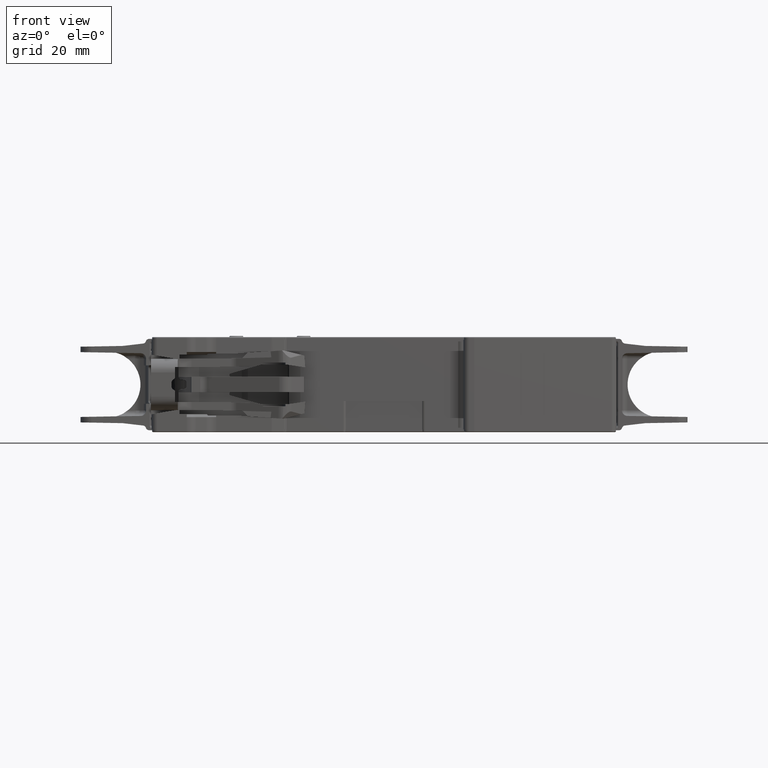
[diagram: clean part render]
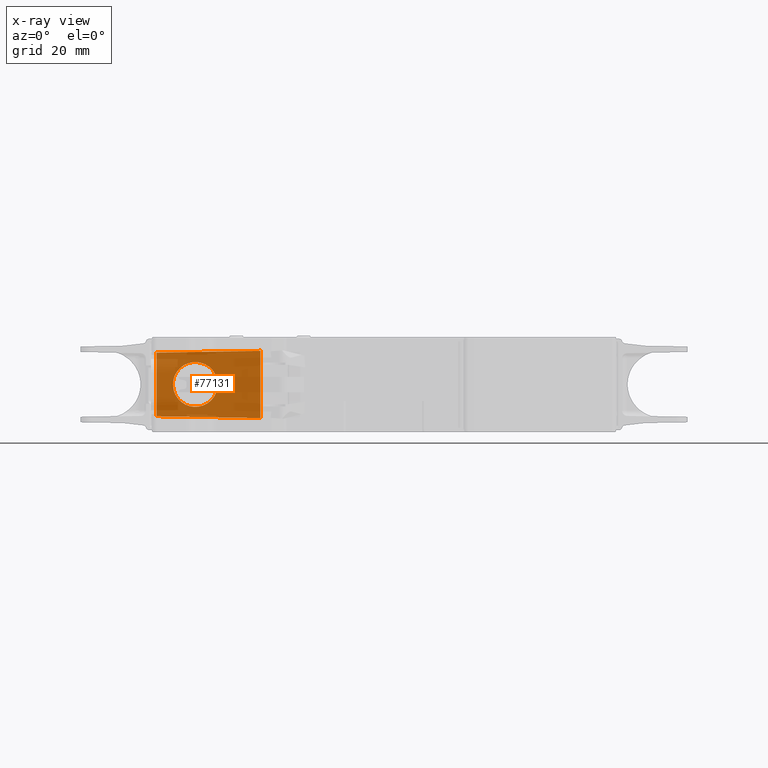
[diagram: x-ray — body ghosted, one internal face saturated and labeled with its STEP entity id]
A machine part, front view, then the same camera in x-ray: the body is ghosted and one INTERNAL B-rep face — a face not visible from any outside direction — is saturated and labeled: STEP entity #77131.
In plain terms, the highlighted planar face has unit normal (-0.0698, 0.9976, 0).
Its self-contained STEP definition (entity closure, byte-faithful):
#6565=DIRECTION('',(0.E0,0.E0,-1.E0));
#6566=VECTOR('',#6565,1.229577685988E1);
#6567=CARTESIAN_POINT('',(-2.26E1,-8.021113419311E0,6.147888429939E0));
#6568=LINE('',#6567,#6566);
#18424=DIRECTION('',(9.974128314399E-1,6.974624611232E-2,-1.740990615397E-2));
#18425=VECTOR('',#18424,1.901896126957E1);
#18426=CARTESIAN_POINT('',(-4.156975601092E1,-9.347614572819E0,
-5.816770099090E0));
#18427=LINE('',#18426,#18425);
#18428=DIRECTION('',(-1.755123360180E-10,-1.176329408071E-11,1.E0));
#18429=VECTOR('',#18428,1.163354019814E1);
#18430=CARTESIAN_POINT('',(-4.156975601092E1,-9.347614572819E0,
-5.816770099090E0));
#18431=LINE('',#18430,#18429);
#18432=DIRECTION('',(-9.974128314399E-1,-6.974624611200E-2,-1.740990615400E-2));
#18433=VECTOR('',#18432,1.901896127161E1);
#18434=CARTESIAN_POINT('',(-2.26E1,-8.021113419311E0,6.147888429939E0));
#18435=LINE('',#18434,#18433);
#18436=CARTESIAN_POINT('',(-3.04E1,-8.566542552471E0,0.E0));
#18437=CARTESIAN_POINT('',(-3.04E1,-8.566542552471E0,1.207974084527E-1));
#18438=CARTESIAN_POINT('',(-3.041068865333E1,-8.567289975922E0,
3.668393172799E-1));
#18439=CARTESIAN_POINT('',(-3.046209896146E1,-8.570884934871E0,
7.452854491249E-1));
#18440=CARTESIAN_POINT('',(-3.055160343777E1,-8.577143697553E0,
1.128309975559E0));
#18441=CARTESIAN_POINT('',(-3.068107291606E1,-8.586197085414E0,
1.510366733834E0));
#18442=CARTESIAN_POINT('',(-3.085131269187E1,-8.598101410203E0,
1.885352944327E0));
#18443=CARTESIAN_POINT('',(-3.106188974844E1,-8.612826392437E0,
2.246868478034E0));
#18444=CARTESIAN_POINT('',(-3.131103873838E1,-8.630248587002E0,
2.588533076811E0));
#18445=CARTESIAN_POINT('',(-3.159566688370E1,-8.650151725794E0,
2.904333124142E0));
#18446=CARTESIAN_POINT('',(-3.191146690964E1,-8.672234614820E0,
3.188961243809E0));
#18447=CARTESIAN_POINT('',(-3.225313156831E1,-8.696126135155E0,
3.438110314963E0));
#18448=CARTESIAN_POINT('',(-3.261464688383E1,-8.721405748637E0,
3.648687072316E0));
#18449=CARTESIAN_POINT('',(-3.298963390720E1,-8.747627395702E0,
3.818927963783E0));
#18450=CARTESIAN_POINT('',(-3.330801201133E1,-8.769890561517E0,
3.926815726202E0));
#18451=CARTESIAN_POINT('',(-3.356320555556E1,-8.787735432493E0,
3.993153285780E0));
#18452=CARTESIAN_POINT('',(-3.375414038517E1,-8.801086896416E0,
4.033137186436E0));
#18453=CARTESIAN_POINT('',(-3.394394181442E1,-8.814359105266E0,
4.063610031525E0));
#18454=CARTESIAN_POINT('',(-3.410064506859E1,-8.825316864252E0,
4.081341307174E0));
#18455=CARTESIAN_POINT('',(-3.422484092751E1,-8.834001484722E0,
4.091109016721E0));
#18456=CARTESIAN_POINT('',(-3.431734156767E1,-8.840469759592E0,
4.096275298448E0));
#18457=CARTESIAN_POINT('',(-3.439382259107E1,-8.845817833732E0,
4.098823078446E0));
#18458=CARTESIAN_POINT('',(-3.445464091427E1,-8.850070665181E0,
4.099833167338E0));
#18459=CARTESIAN_POINT('',(-3.45E1,-8.853242481439E0,4.100083416331E0));
#18460=CARTESIAN_POINT('',(-3.454535908573E1,-8.856414297697E0,
4.099833167338E0));
#18461=CARTESIAN_POINT('',(-3.460617740893E1,-8.860667129146E0,
4.098823078446E0));
#18462=CARTESIAN_POINT('',(-3.468265843233E1,-8.866015203286E0,
4.096275298448E0));
#18463=CARTESIAN_POINT('',(-3.477515907249E1,-8.872483478156E0,
4.091109016721E0));
#18464=CARTESIAN_POINT('',(-3.489935493141E1,-8.881168098626E0,
4.081341307174E0));
#18465=CARTESIAN_POINT('',(-3.505605818558E1,-8.892125857611E0,
4.063610031525E0));
#18466=CARTESIAN_POINT('',(-3.524585961483E1,-8.905398066461E0,
4.033137186436E0));
#18467=CARTESIAN_POINT('',(-3.543679444444E1,-8.918749530385E0,
3.993153285780E0));
#18468=CARTESIAN_POINT('',(-3.569198798867E1,-8.936594401361E0,
3.926815726202E0));
#18469=CARTESIAN_POINT('',(-3.601036609280E1,-8.958857567176E0,
3.818927963783E0));
#18470=CARTESIAN_POINT('',(-3.638535311617E1,-8.985079214241E0,
3.648687072316E0));
#18471=CARTESIAN_POINT('',(-3.674686843169E1,-9.010358827723E0,
3.438110314963E0));
#18472=CARTESIAN_POINT('',(-3.708853309036E1,-9.034250348058E0,
3.188961243809E0));
#18473=CARTESIAN_POINT('',(-3.740433311630E1,-9.056333237084E0,
2.904333124142E0));
#18474=CARTESIAN_POINT('',(-3.768896126162E1,-9.076236375875E0,
2.588533076811E0));
#18475=CARTESIAN_POINT('',(-3.793811025156E1,-9.093658570441E0,
2.246868478034E0));
#18476=CARTESIAN_POINT('',(-3.814868730813E1,-9.108383552675E0,
1.885352944327E0));
#18477=CARTESIAN_POINT('',(-3.831892708394E1,-9.120287877464E0,
1.510366733834E0));
#18478=CARTESIAN_POINT('',(-3.844839656223E1,-9.129341265324E0,
1.128309975559E0));
#18479=CARTESIAN_POINT('',(-3.853790103854E1,-9.135600028007E0,
7.452854491249E-1));
#18480=CARTESIAN_POINT('',(-3.858931134667E1,-9.139194986956E0,
3.668393172799E-1));
#18481=CARTESIAN_POINT('',(-3.86E1,-9.139942410407E0,1.207974084527E-1));
#18482=CARTESIAN_POINT('',(-3.86E1,-9.139942410407E0,0.E0));
#18484=CARTESIAN_POINT('',(-3.86E1,-9.139942410407E0,0.E0));
#18485=CARTESIAN_POINT('',(-3.86E1,-9.139942410407E0,-1.207974084527E-1));
#18486=CARTESIAN_POINT('',(-3.858931134667E1,-9.139194986956E0,
-3.668393172799E-1));
#18487=CARTESIAN_POINT('',(-3.853790103854E1,-9.135600028007E0,
-7.452854491249E-1));
#18488=CARTESIAN_POINT('',(-3.844839656223E1,-9.129341265324E0,
-1.128309975559E0));
#18489=CARTESIAN_POINT('',(-3.831892708394E1,-9.120287877464E0,
-1.510366733834E0));
#18490=CARTESIAN_POINT('',(-3.814868730813E1,-9.108383552675E0,
-1.885352944327E0));
#18491=CARTESIAN_POINT('',(-3.793811025156E1,-9.093658570441E0,
-2.246868478034E0));
#18492=CARTESIAN_POINT('',(-3.768896126162E1,-9.076236375875E0,
-2.588533076811E0));
#18493=CARTESIAN_POINT('',(-3.740433311630E1,-9.056333237084E0,
-2.904333124142E0));
#18494=CARTESIAN_POINT('',(-3.708853309036E1,-9.034250348058E0,
-3.188961243809E0));
#18495=CARTESIAN_POINT('',(-3.674686843169E1,-9.010358827723E0,
-3.438110314963E0));
#18496=CARTESIAN_POINT('',(-3.638535311617E1,-8.985079214241E0,
-3.648687072316E0));
#18497=CARTESIAN_POINT('',(-3.601036609280E1,-8.958857567176E0,
-3.818927963783E0));
#18498=CARTESIAN_POINT('',(-3.569198798867E1,-8.936594401361E0,
-3.926815726202E0));
#18499=CARTESIAN_POINT('',(-3.543679444444E1,-8.918749530385E0,
-3.993153285780E0));
#18500=CARTESIAN_POINT('',(-3.524585961483E1,-8.905398066461E0,
-4.033137186436E0));
#18501=CARTESIAN_POINT('',(-3.505605818558E1,-8.892125857611E0,
-4.063610031525E0));
#18502=CARTESIAN_POINT('',(-3.489935493141E1,-8.881168098626E0,
-4.081341307174E0));
#18503=CARTESIAN_POINT('',(-3.477515907249E1,-8.872483478156E0,
-4.091109016721E0));
#18504=CARTESIAN_POINT('',(-3.468265843233E1,-8.866015203286E0,
-4.096275298448E0));
#18505=CARTESIAN_POINT('',(-3.460617740893E1,-8.860667129146E0,
-4.098823078446E0));
#18506=CARTESIAN_POINT('',(-3.454535908573E1,-8.856414297697E0,
-4.099833167338E0));
#18507=CARTESIAN_POINT('',(-3.45E1,-8.853242481439E0,-4.100083416331E0));
#18508=CARTESIAN_POINT('',(-3.445464091427E1,-8.850070665181E0,
-4.099833167338E0));
#18509=CARTESIAN_POINT('',(-3.439382259107E1,-8.845817833732E0,
-4.098823078446E0));
#18510=CARTESIAN_POINT('',(-3.431734156767E1,-8.840469759592E0,
-4.096275298448E0));
#18511=CARTESIAN_POINT('',(-3.422484092751E1,-8.834001484722E0,
-4.091109016721E0));
#18512=CARTESIAN_POINT('',(-3.410064506859E1,-8.825316864252E0,
-4.081341307174E0));
#18513=CARTESIAN_POINT('',(-3.394394181442E1,-8.814359105266E0,
-4.063610031525E0));
#18514=CARTESIAN_POINT('',(-3.375414038517E1,-8.801086896416E0,
-4.033137186436E0));
#18515=CARTESIAN_POINT('',(-3.356320555556E1,-8.787735432493E0,
-3.993153285780E0));
#18516=CARTESIAN_POINT('',(-3.330801201133E1,-8.769890561517E0,
-3.926815726202E0));
#18517=CARTESIAN_POINT('',(-3.298963390720E1,-8.747627395702E0,
-3.818927963783E0));
#18518=CARTESIAN_POINT('',(-3.261464688383E1,-8.721405748637E0,
-3.648687072316E0));
#18519=CARTESIAN_POINT('',(-3.225313156831E1,-8.696126135155E0,
-3.438110314963E0));
#18520=CARTESIAN_POINT('',(-3.191146690964E1,-8.672234614820E0,
-3.188961243809E0));
#18521=CARTESIAN_POINT('',(-3.159566688370E1,-8.650151725794E0,
-2.904333124142E0));
#18522=CARTESIAN_POINT('',(-3.131103873838E1,-8.630248587002E0,
-2.588533076811E0));
#18523=CARTESIAN_POINT('',(-3.106188974844E1,-8.612826392437E0,
-2.246868478034E0));
#18524=CARTESIAN_POINT('',(-3.085131269187E1,-8.598101410203E0,
-1.885352944327E0));
#18525=CARTESIAN_POINT('',(-3.068107291606E1,-8.586197085414E0,
-1.510366733834E0));
#18526=CARTESIAN_POINT('',(-3.055160343777E1,-8.577143697553E0,
-1.128309975559E0));
#18527=CARTESIAN_POINT('',(-3.046209896146E1,-8.570884934871E0,
-7.452854491249E-1));
#18528=CARTESIAN_POINT('',(-3.041068865333E1,-8.567289975922E0,
-3.668393172799E-1));
#18529=CARTESIAN_POINT('',(-3.04E1,-8.566542552471E0,-1.207974084527E-1));
#18530=CARTESIAN_POINT('',(-3.04E1,-8.566542552471E0,0.E0));
#18938=CARTESIAN_POINT('',(-4.156975601297E1,-9.347614572956E0,
5.816770099053E0));
#45588=CARTESIAN_POINT('',(-3.86E1,-9.139942410407E0,0.E0));
#45589=VERTEX_POINT('',#45588);
#45590=CARTESIAN_POINT('',(-3.04E1,-8.566542552471E0,0.E0));
#45591=VERTEX_POINT('',#45590);
#46373=CARTESIAN_POINT('',(-4.156975601092E1,-9.347614572819E0,
-5.816770099090E0));
#46374=CARTESIAN_POINT('',(-2.26E1,-8.021113419311E0,-6.147888429939E0));
#46375=VERTEX_POINT('',#46373);
#46376=VERTEX_POINT('',#46374);
#46392=VERTEX_POINT('',#18938);
#46393=CARTESIAN_POINT('',(-2.26E1,-8.021113419311E0,6.147888429939E0));
#46394=VERTEX_POINT('',#46393);
#77113=CARTESIAN_POINT('',(-4.25E1,-9.412656976987E0,6.3E0));
#77114=DIRECTION('',(-6.975647374412E-2,9.975640502598E-1,0.E0));
#77115=DIRECTION('',(9.975640502598E-1,6.975647374412E-2,0.E0));
#77116=AXIS2_PLACEMENT_3D('',#77113,#77114,#77115);
#77117=PLANE('',#77116);
#77119=ORIENTED_EDGE('',*,*,#77118,.F.);
#77121=ORIENTED_EDGE('',*,*,#77120,.T.);
#77123=ORIENTED_EDGE('',*,*,#77122,.F.);
#77124=ORIENTED_EDGE('',*,*,#55205,.T.);
#77125=EDGE_LOOP('',(#77119,#77121,#77123,#77124));
#77126=FACE_OUTER_BOUND('',#77125,.F.);
#77127=ORIENTED_EDGE('',*,*,#77079,.T.);
#77128=ORIENTED_EDGE('',*,*,#77100,.T.);
#77129=EDGE_LOOP('',(#77127,#77128));
#77130=FACE_BOUND('',#77129,.F.);
#18483=B_SPLINE_CURVE_WITH_KNOTS('',3,(#18436,#18437,#18438,#18439,#18440,
#18441,#18442,#18443,#18444,#18445,#18446,#18447,#18448,#18449,#18450,#18451,
#18452,#18453,#18454,#18455,#18456,#18457,#18458,#18459,#18460,#18461,#18462,
#18463,#18464,#18465,#18466,#18467,#18468,#18469,#18470,#18471,#18472,#18473,
#18474,#18475,#18476,#18477,#18478,#18479,#18480,#18481,#18482),.UNSPECIFIED.,
.F.,.F.,(4,1,1,1,1,1,1,1,1,1,1,1,1,1,1,1,1,1,1,1,1,1,1,1,1,1,1,1,1,1,1,1,1,1,1,
1,1,1,1,1,1,1,1,1,4),(0.E0,3.125E-2,6.25E-2,9.375E-2,1.25E-1,1.5625E-1,1.875E-1,
2.1875E-1,2.5E-1,2.8125E-1,3.125E-1,3.4375E-1,3.75E-1,4.0625E-1,4.21875E-1,
4.375E-1,4.53125E-1,4.6875E-1,4.765625E-1,4.84375E-1,4.921875E-1,4.9609375E-1,
5.E-1,5.0390625E-1,5.078125E-1,5.15625E-1,5.234375E-1,5.3125E-1,5.46875E-1,
5.625E-1,5.78125E-1,5.9375E-1,6.25E-1,6.5625E-1,6.875E-1,7.1875E-1,7.5E-1,
7.8125E-1,8.125E-1,8.4375E-1,8.75E-1,9.0625E-1,9.375E-1,9.6875E-1,1.E0),
.UNSPECIFIED.);
#18531=B_SPLINE_CURVE_WITH_KNOTS('',3,(#18484,#18485,#18486,#18487,#18488,
#18489,#18490,#18491,#18492,#18493,#18494,#18495,#18496,#18497,#18498,#18499,
#18500,#18501,#18502,#18503,#18504,#18505,#18506,#18507,#18508,#18509,#18510,
#18511,#18512,#18513,#18514,#18515,#18516,#18517,#18518,#18519,#18520,#18521,
#18522,#18523,#18524,#18525,#18526,#18527,#18528,#18529,#18530),.UNSPECIFIED.,
.F.,.F.,(4,1,1,1,1,1,1,1,1,1,1,1,1,1,1,1,1,1,1,1,1,1,1,1,1,1,1,1,1,1,1,1,1,1,1,
1,1,1,1,1,1,1,1,1,4),(0.E0,3.125E-2,6.25E-2,9.375E-2,1.25E-1,1.5625E-1,1.875E-1,
2.1875E-1,2.5E-1,2.8125E-1,3.125E-1,3.4375E-1,3.75E-1,4.0625E-1,4.21875E-1,
4.375E-1,4.53125E-1,4.6875E-1,4.765625E-1,4.84375E-1,4.921875E-1,4.9609375E-1,
5.E-1,5.0390625E-1,5.078125E-1,5.15625E-1,5.234375E-1,5.3125E-1,5.46875E-1,
5.625E-1,5.78125E-1,5.9375E-1,6.25E-1,6.5625E-1,6.875E-1,7.1875E-1,7.5E-1,
7.8125E-1,8.125E-1,8.4375E-1,8.75E-1,9.0625E-1,9.375E-1,9.6875E-1,1.E0),
.UNSPECIFIED.);
#55205=EDGE_CURVE('',#46394,#46376,#6568,.T.);
#77079=EDGE_CURVE('',#45591,#45589,#18483,.T.);
#77100=EDGE_CURVE('',#45589,#45591,#18531,.T.);
#77118=EDGE_CURVE('',#46375,#46376,#18427,.T.);
#77120=EDGE_CURVE('',#46375,#46392,#18431,.T.);
#77122=EDGE_CURVE('',#46394,#46392,#18435,.T.);
#77131=ADVANCED_FACE('',(#77126,#77130),#77117,.F.);